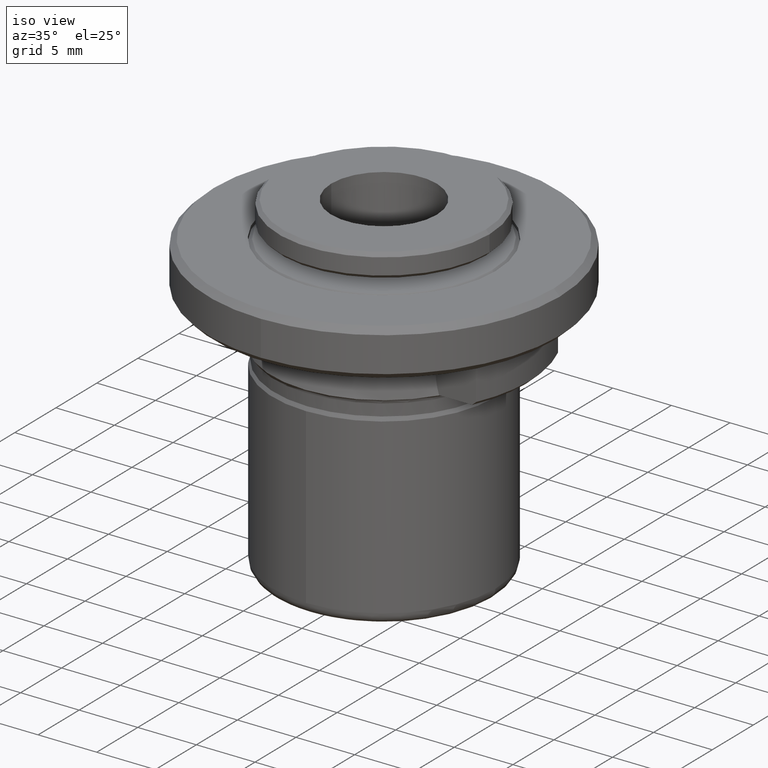
[diagram: clean part render]
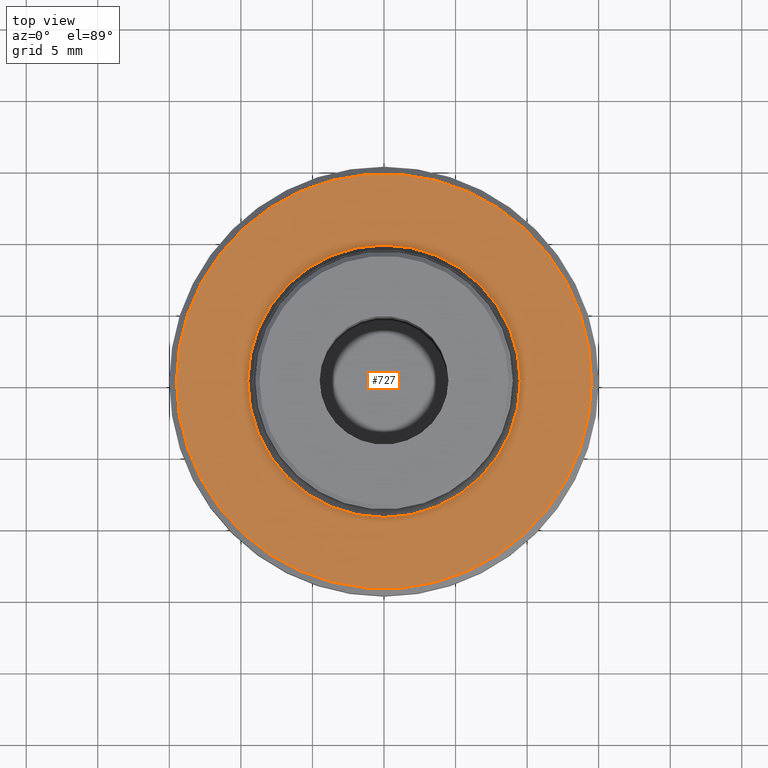
[diagram: tour spotlight — one face highlighted and labeled with its STEP entity id]
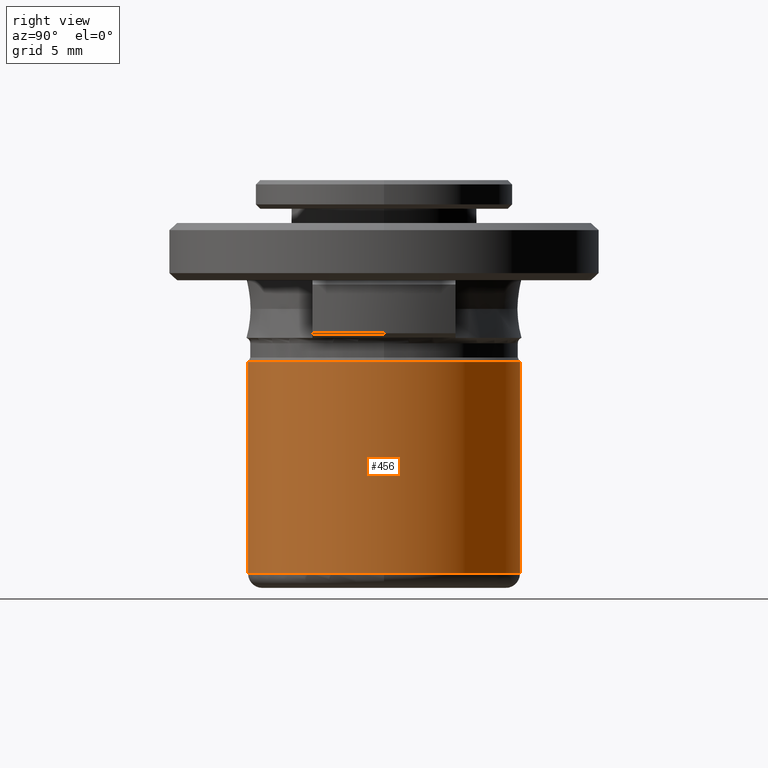
[diagram: tour spotlight — one face highlighted and labeled with its STEP entity id]
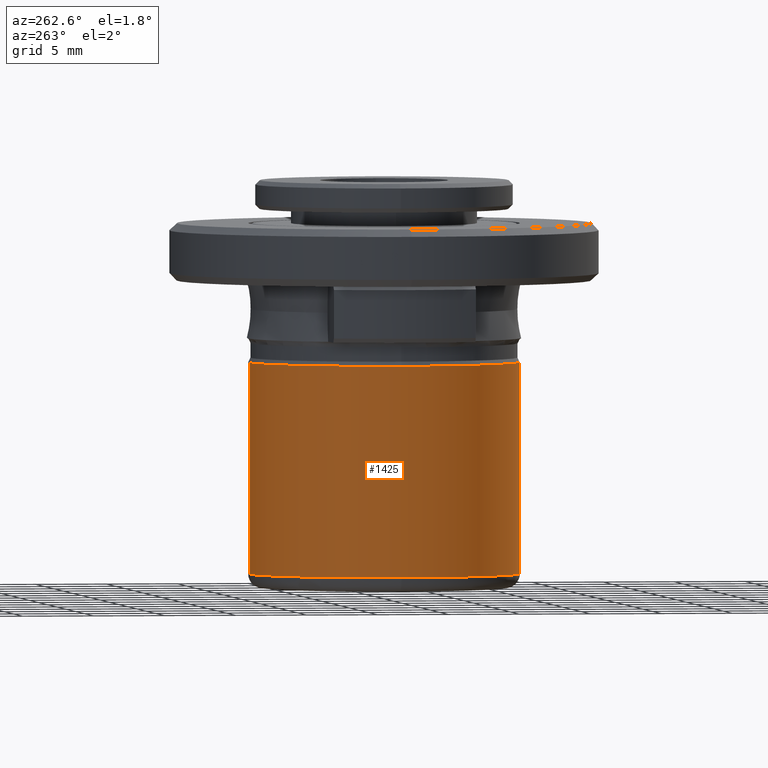
[diagram: tour spotlight — one face highlighted and labeled with its STEP entity id]
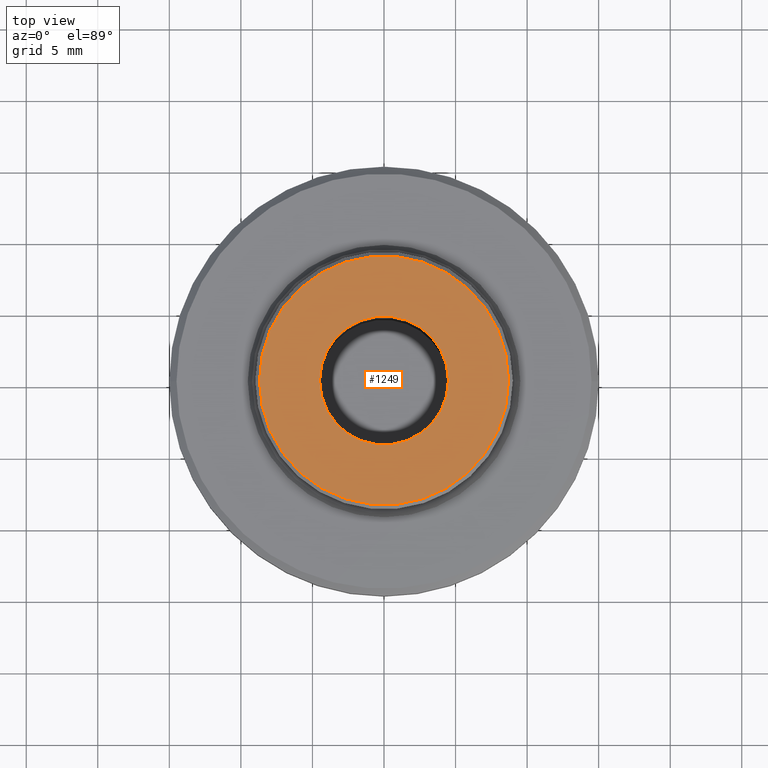
[diagram: tour spotlight — one face highlighted and labeled with its STEP entity id]
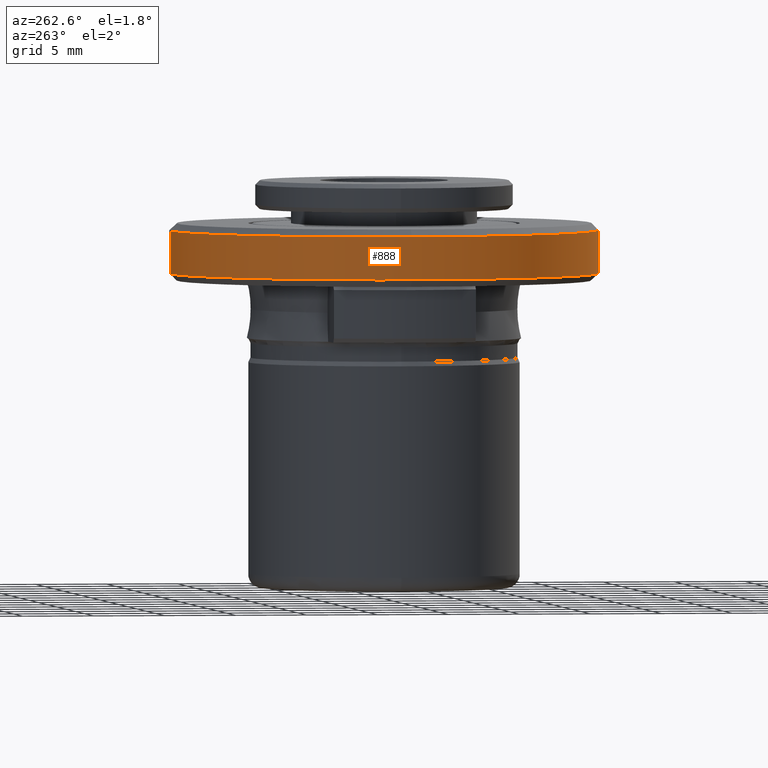
[diagram: tour spotlight — one face highlighted and labeled with its STEP entity id]
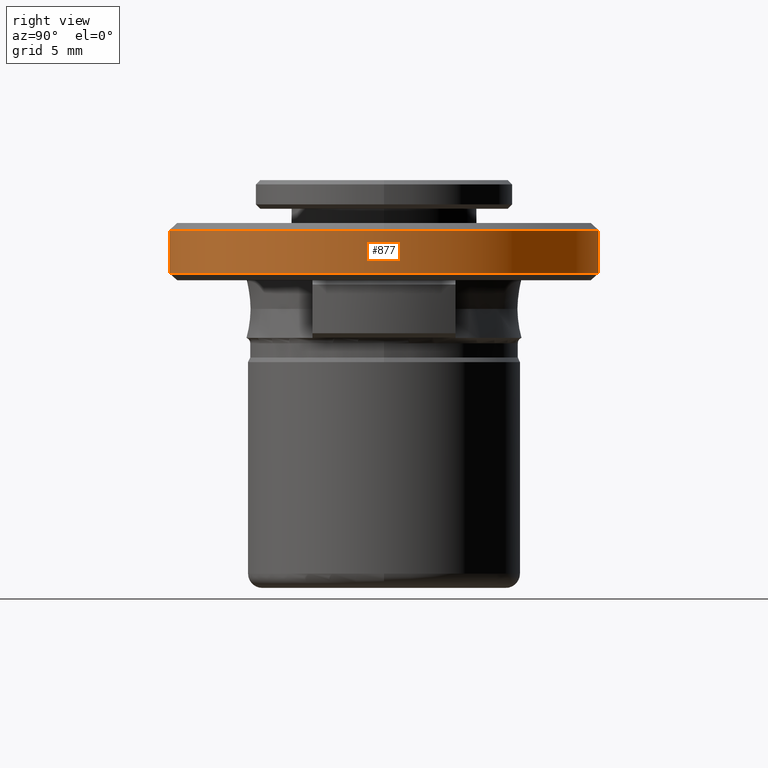
[diagram: tour spotlight — one face highlighted and labeled with its STEP entity id]
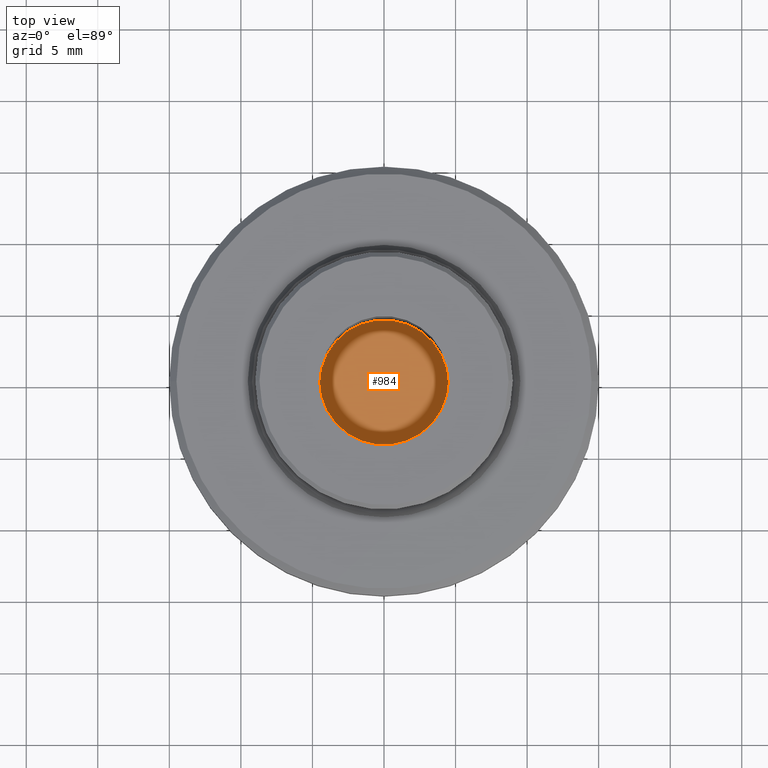
[diagram: tour spotlight — one face highlighted and labeled with its STEP entity id]
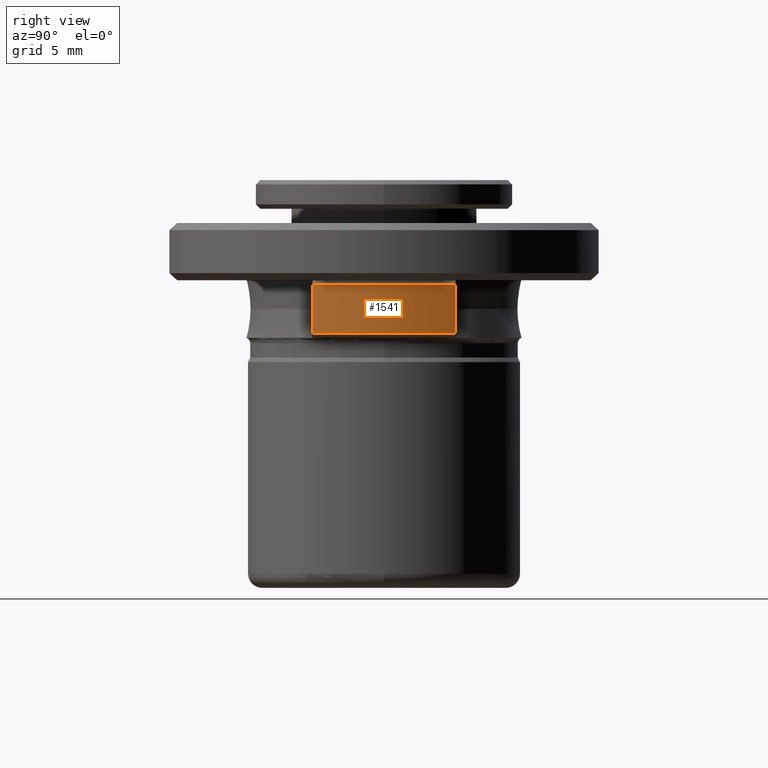
[diagram: tour spotlight — one face highlighted and labeled with its STEP entity id]
A machine part: a face-by-face anatomy tour. The part has 55 B-rep faces; the first image is the clean iso view, then the 8 largest visible faces are spotlighted one at a time (largest first), each with its STEP entity span.

Face 1 — top view, entity #727. In plain terms, the highlighted planar face has unit normal (0, 0, -1).
Definition (entity closure, byte-faithful):
#61 = AXIS2_PLACEMENT_3D ( 'NONE', #1360, #536, #1493 ) ;
#89 = CARTESIAN_POINT ( 'NONE',  ( 0.0000000000000000000, 0.0000000000000000000, 12.75000000000000200 ) ) ;
#98 = CARTESIAN_POINT ( 'NONE',  ( 9.519999999999999600, 1.165863752788280200E-015, 12.75000000000000200 ) ) ;
#160 = ORIENTED_EDGE ( 'NONE', *, *, #204, .F. ) ;
#169 = DIRECTION ( 'NONE',  ( -0.0000000000000000000, -0.0000000000000000000, 1.000000000000000000 ) ) ;
#204 = EDGE_CURVE ( 'NONE', #830, #1688, #1112, .T. ) ;
#227 = DIRECTION ( 'NONE',  ( -1.000000000000000000, 0.0000000000000000000, 0.0000000000000000000 ) ) ;
#254 = CIRCLE ( 'NONE', #429, 9.519999999999999600 ) ;
#276 = EDGE_CURVE ( 'NONE', #1688, #830, #254, .T. ) ;
#346 = CARTESIAN_POINT ( 'NONE',  ( 0.0000000000000000000, 0.0000000000000000000, 12.75000000000003900 ) ) ;
#349 = EDGE_CURVE ( 'NONE', #933, #1480, #1229, .T. ) ;
#361 = CARTESIAN_POINT ( 'NONE',  ( 14.67399999999999900, -14.67399999999999900, 12.75000000000000200 ) ) ;
#429 = AXIS2_PLACEMENT_3D ( 'NONE', #89, #1074, #227 ) ;
#483 = DIRECTION ( 'NONE',  ( -1.000000000000000000, 0.0000000000000000000, 0.0000000000000000000 ) ) ;
#536 = DIRECTION ( 'NONE',  ( -0.0000000000000000000, -0.0000000000000000000, 1.000000000000000000 ) ) ;
#538 = CARTESIAN_POINT ( 'NONE',  ( -14.49999999999996300, 0.0000000000000000000, 12.75000000000003900 ) ) ;
#552 = EDGE_LOOP ( 'NONE', ( #560, #160 ) ) ;
#560 = ORIENTED_EDGE ( 'NONE', *, *, #276, .F. ) ;
#655 = AXIS2_PLACEMENT_3D ( 'NONE', #361, #1595, #798 ) ;
#706 = AXIS2_PLACEMENT_3D ( 'NONE', #1015, #169, #1145 ) ;
#717 = ORIENTED_EDGE ( 'NONE', *, *, #349, .T. ) ;
#720 = CIRCLE ( 'NONE', #706, 14.49999999999996300 ) ;
#727 = ADVANCED_FACE ( 'NONE', ( #1737, #1068 ), #1064, .F. ) ;
#798 = DIRECTION ( 'NONE',  ( -1.000000000000000000, 0.0000000000000000000, 0.0000000000000000000 ) ) ;
#830 = VERTEX_POINT ( 'NONE', #98 ) ;
#881 = CARTESIAN_POINT ( 'NONE',  ( -9.519999999999999600, 0.0000000000000000000, 12.75000000000000200 ) ) ;
#902 = CARTESIAN_POINT ( 'NONE',  ( 14.49999999999996300, 1.806354028742343400E-015, 12.75000000000003900 ) ) ;
#933 = VERTEX_POINT ( 'NONE', #538 ) ;
#1015 = CARTESIAN_POINT ( 'NONE',  ( 0.0000000000000000000, 0.0000000000000000000, 12.75000000000003900 ) ) ;
#1064 = PLANE ( 'NONE',  #655 ) ;
#1068 = FACE_OUTER_BOUND ( 'NONE', #1658, .T. ) ;
#1074 = DIRECTION ( 'NONE',  ( -0.0000000000000000000, -0.0000000000000000000, 1.000000000000000000 ) ) ;
#1088 = AXIS2_PLACEMENT_3D ( 'NONE', #346, #1308, #483 ) ;
#1112 = CIRCLE ( 'NONE', #61, 9.519999999999999600 ) ;
#1145 = DIRECTION ( 'NONE',  ( -1.000000000000000000, 0.0000000000000000000, 0.0000000000000000000 ) ) ;
#1196 = ORIENTED_EDGE ( 'NONE', *, *, #1746, .T. ) ;
#1229 = CIRCLE ( 'NONE', #1088, 14.49999999999996300 ) ;
#1308 = DIRECTION ( 'NONE',  ( -0.0000000000000000000, -0.0000000000000000000, 1.000000000000000000 ) ) ;
#1360 = CARTESIAN_POINT ( 'NONE',  ( 0.0000000000000000000, 0.0000000000000000000, 12.75000000000000200 ) ) ;
#1480 = VERTEX_POINT ( 'NONE', #902 ) ;
#1493 = DIRECTION ( 'NONE',  ( -1.000000000000000000, 0.0000000000000000000, 0.0000000000000000000 ) ) ;
#1595 = DIRECTION ( 'NONE',  ( 0.0000000000000000000, 0.0000000000000000000, -1.000000000000000000 ) ) ;
#1658 = EDGE_LOOP ( 'NONE', ( #717, #1196 ) ) ;
#1688 = VERTEX_POINT ( 'NONE', #881 ) ;
#1737 = FACE_BOUND ( 'NONE', #552, .T. ) ;
#1746 = EDGE_CURVE ( 'NONE', #1480, #933, #720, .T. ) ;

Face 2 — right view, entity #456. In plain terms, the highlighted cylindrical surface (partial cylindrical patch) has radius 9.5 mm, axis along (0, -0, 1).
Definition (entity closure, byte-faithful):
#41 = EDGE_CURVE ( 'NONE', #1419, #101, #262, .T. ) ;
#101 = VERTEX_POINT ( 'NONE', #1254 ) ;
#145 = AXIS2_PLACEMENT_3D ( 'NONE', #832, #1771, #956 ) ;
#183 = EDGE_CURVE ( 'NONE', #1394, #1253, #1434, .T. ) ;
#207 = EDGE_CURVE ( 'NONE', #910, #1419, #805, .T. ) ;
#211 = VECTOR ( 'NONE', #324, 1000.000000000000000 ) ;
#222 = CARTESIAN_POINT ( 'NONE',  ( 0.0000000000000000000, -9.500000000000000000, -6.570177872000000400 ) ) ;
#240 = CARTESIAN_POINT ( 'NONE',  ( 0.0000000000000000000, 0.0000000000000000000, 3.030000000000088200 ) ) ;
#247 = EDGE_CURVE ( 'NONE', #1253, #1065, #348, .T. ) ;
#262 = CIRCLE ( 'NONE', #1453, 9.500000000000000000 ) ;
#265 = EDGE_CURVE ( 'NONE', #910, #1065, #297, .T. ) ;
#280 = EDGE_CURVE ( 'NONE', #101, #1394, #1364, .T. ) ;
#297 = LINE ( 'NONE', #222, #643 ) ;
#324 = DIRECTION ( 'NONE',  ( 0.0000000000000000000, -4.565061778886334800E-017, 1.000000000000000000 ) ) ;
#344 = AXIS2_PLACEMENT_3D ( 'NONE', #1184, #362, #1323 ) ;
#348 = CIRCLE ( 'NONE', #344, 9.500000000000000000 ) ;
#362 = DIRECTION ( 'NONE',  ( 0.0000000000000000000, 0.0000000000000000000, -1.000000000000000000 ) ) ;
#367 = FACE_OUTER_BOUND ( 'NONE', #1661, .T. ) ;
#385 = DIRECTION ( 'NONE',  ( -1.000000000000000000, 0.0000000000000000000, -9.312726028928122700E-015 ) ) ;
#393 = AXIS2_PLACEMENT_3D ( 'NONE', #885, #1023, #1551 ) ;
#456 = ADVANCED_FACE ( 'NONE', ( #367 ), #709, .T. ) ;
#565 = CARTESIAN_POINT ( 'NONE',  ( 1.163414459189985500E-015, 9.500000000000000000, 3.030000000000088200 ) ) ;
#629 = CARTESIAN_POINT ( 'NONE',  ( 0.0000000000000000000, -9.500000000000000000, 3.030000000000088200 ) ) ;
#643 = VECTOR ( 'NONE', #1332, 1000.000000000000000 ) ;
#709 = CYLINDRICAL_SURFACE ( 'NONE', #393, 9.500000000000000000 ) ;
#722 = ORIENTED_EDGE ( 'NONE', *, *, #247, .T. ) ;
#778 = CARTESIAN_POINT ( 'NONE',  ( 0.0000000000000000000, 2.364620801796248300E-016, -11.75000000000000000 ) ) ;
#805 = CIRCLE ( 'NONE', #145, 9.500000000000000000 ) ;
#832 = CARTESIAN_POINT ( 'NONE',  ( 0.0000000000000000000, 2.364620801796248300E-016, -11.75000000000000000 ) ) ;
#885 = CARTESIAN_POINT ( 'NONE',  ( 0.0000000000000000000, 0.0000000000000000000, -6.570177872000000400 ) ) ;
#910 = VERTEX_POINT ( 'NONE', #1623 ) ;
#911 = DIRECTION ( 'NONE',  ( 1.000000000000000000, 0.0000000000000000000, 0.0000000000000000000 ) ) ;
#956 = DIRECTION ( 'NONE',  ( 1.000000000000000000, 0.0000000000000000000, 0.0000000000000000000 ) ) ;
#959 = ORIENTED_EDGE ( 'NONE', *, *, #183, .T. ) ;
#1013 = ORIENTED_EDGE ( 'NONE', *, *, #265, .F. ) ;
#1023 = DIRECTION ( 'NONE',  ( 0.0000000000000000000, -4.565061778886334800E-017, 1.000000000000000000 ) ) ;
#1065 = VERTEX_POINT ( 'NONE', #629 ) ;
#1078 = ORIENTED_EDGE ( 'NONE', *, *, #280, .T. ) ;
#1136 = ORIENTED_EDGE ( 'NONE', *, *, #41, .T. ) ;
#1184 = CARTESIAN_POINT ( 'NONE',  ( 0.0000000000000000000, 0.0000000000000000000, 3.030000000000088200 ) ) ;
#1207 = DIRECTION ( 'NONE',  ( 0.0000000000000000000, 0.0000000000000000000, -1.000000000000000000 ) ) ;
#1253 = VERTEX_POINT ( 'NONE', #1608 ) ;
#1254 = CARTESIAN_POINT ( 'NONE',  ( 1.163414459189985500E-015, 9.500000000000000000, -11.75000000000000000 ) ) ;
#1323 = DIRECTION ( 'NONE',  ( -1.000000000000000000, 0.0000000000000000000, -9.312726028928122700E-015 ) ) ;
#1332 = DIRECTION ( 'NONE',  ( 0.0000000000000000000, -4.565061778886334800E-017, 1.000000000000000000 ) ) ;
#1364 = LINE ( 'NONE', #1474, #211 ) ;
#1394 = VERTEX_POINT ( 'NONE', #565 ) ;
#1419 = VERTEX_POINT ( 'NONE', #1556 ) ;
#1434 = CIRCLE ( 'NONE', #1576, 9.500000000000000000 ) ;
#1453 = AXIS2_PLACEMENT_3D ( 'NONE', #778, #1714, #911 ) ;
#1474 = CARTESIAN_POINT ( 'NONE',  ( 1.163414459189985500E-015, 9.500000000000000000, -6.570177872000000400 ) ) ;
#1536 = ORIENTED_EDGE ( 'NONE', *, *, #207, .T. ) ;
#1551 = DIRECTION ( 'NONE',  ( 0.0000000000000000000, -1.000000000000000000, 0.0000000000000000000 ) ) ;
#1556 = CARTESIAN_POINT ( 'NONE',  ( 9.500000000000001800, 2.364620801796248300E-016, -11.75000000000000000 ) ) ;
#1576 = AXIS2_PLACEMENT_3D ( 'NONE', #240, #1207, #385 ) ;
#1608 = CARTESIAN_POINT ( 'NONE',  ( 9.499999999999957400, 1.163414459189980600E-015, 3.030000000000088200 ) ) ;
#1623 = CARTESIAN_POINT ( 'NONE',  ( 0.0000000000000000000, -9.500000000000000000, -11.75000000000000000 ) ) ;
#1661 = EDGE_LOOP ( 'NONE', ( #1536, #1136, #1078, #959, #722, #1013 ) ) ;
#1714 = DIRECTION ( 'NONE',  ( 0.0000000000000000000, 0.0000000000000000000, 1.000000000000000000 ) ) ;
#1771 = DIRECTION ( 'NONE',  ( 0.0000000000000000000, 0.0000000000000000000, 1.000000000000000000 ) ) ;

Face 3 — auxiliary view, entity #1425. In plain terms, the highlighted cylindrical surface (partial cylindrical patch) has radius 9.5 mm, axis along (0, -0, 1).
Definition (entity closure, byte-faithful):
#25 = ORIENTED_EDGE ( 'NONE', *, *, #513, .T. ) ;
#26 = CARTESIAN_POINT ( 'NONE',  ( 0.0000000000000000000, 0.0000000000000000000, 3.030000000000088200 ) ) ;
#101 = VERTEX_POINT ( 'NONE', #1254 ) ;
#165 = DIRECTION ( 'NONE',  ( -1.000000000000000000, 0.0000000000000000000, -9.312726028928122700E-015 ) ) ;
#211 = VECTOR ( 'NONE', #324, 1000.000000000000000 ) ;
#222 = CARTESIAN_POINT ( 'NONE',  ( 0.0000000000000000000, -9.500000000000000000, -6.570177872000000400 ) ) ;
#264 = AXIS2_PLACEMENT_3D ( 'NONE', #1322, #501, #1464 ) ;
#265 = EDGE_CURVE ( 'NONE', #910, #1065, #297, .T. ) ;
#280 = EDGE_CURVE ( 'NONE', #101, #1394, #1364, .T. ) ;
#283 = ORIENTED_EDGE ( 'NONE', *, *, #718, .T. ) ;
#297 = LINE ( 'NONE', #222, #643 ) ;
#302 = CARTESIAN_POINT ( 'NONE',  ( 0.0000000000000000000, 2.364620801796248300E-016, -11.75000000000000000 ) ) ;
#314 = CIRCLE ( 'NONE', #264, 9.500000000000000000 ) ;
#324 = DIRECTION ( 'NONE',  ( 0.0000000000000000000, -4.565061778886334800E-017, 1.000000000000000000 ) ) ;
#353 = AXIS2_PLACEMENT_3D ( 'NONE', #26, #1010, #165 ) ;
#422 = ORIENTED_EDGE ( 'NONE', *, *, #1408, .T. ) ;
#443 = DIRECTION ( 'NONE',  ( 1.000000000000000000, 0.0000000000000000000, 0.0000000000000000000 ) ) ;
#493 = AXIS2_PLACEMENT_3D ( 'NONE', #302, #1267, #443 ) ;
#501 = DIRECTION ( 'NONE',  ( 0.0000000000000000000, 0.0000000000000000000, -1.000000000000000000 ) ) ;
#513 = EDGE_CURVE ( 'NONE', #1186, #910, #662, .T. ) ;
#565 = CARTESIAN_POINT ( 'NONE',  ( 1.163414459189985500E-015, 9.500000000000000000, 3.030000000000088200 ) ) ;
#613 = CARTESIAN_POINT ( 'NONE',  ( 0.0000000000000000000, 0.0000000000000000000, -6.570177872000000400 ) ) ;
#629 = CARTESIAN_POINT ( 'NONE',  ( 0.0000000000000000000, -9.500000000000000000, 3.030000000000088200 ) ) ;
#643 = VECTOR ( 'NONE', #1332, 1000.000000000000000 ) ;
#662 = CIRCLE ( 'NONE', #493, 9.500000000000000000 ) ;
#700 = FACE_OUTER_BOUND ( 'NONE', #854, .T. ) ;
#718 = EDGE_CURVE ( 'NONE', #1065, #1574, #314, .T. ) ;
#755 = DIRECTION ( 'NONE',  ( 0.0000000000000000000, -4.565061778886334800E-017, 1.000000000000000000 ) ) ;
#850 = CARTESIAN_POINT ( 'NONE',  ( 0.0000000000000000000, 2.364620801796248300E-016, -11.75000000000000000 ) ) ;
#854 = EDGE_LOOP ( 'NONE', ( #1167, #1173, #25, #1415, #283, #422 ) ) ;
#893 = DIRECTION ( 'NONE',  ( 0.0000000000000000000, -1.000000000000000000, 0.0000000000000000000 ) ) ;
#910 = VERTEX_POINT ( 'NONE', #1623 ) ;
#931 = CYLINDRICAL_SURFACE ( 'NONE', #1007, 9.500000000000000000 ) ;
#978 = DIRECTION ( 'NONE',  ( 1.000000000000000000, 0.0000000000000000000, 0.0000000000000000000 ) ) ;
#1007 = AXIS2_PLACEMENT_3D ( 'NONE', #613, #755, #893 ) ;
#1010 = DIRECTION ( 'NONE',  ( 0.0000000000000000000, 0.0000000000000000000, -1.000000000000000000 ) ) ;
#1059 = CARTESIAN_POINT ( 'NONE',  ( -9.500000000000001800, 1.399876539369610000E-015, -11.75000000000000000 ) ) ;
#1065 = VERTEX_POINT ( 'NONE', #629 ) ;
#1108 = CARTESIAN_POINT ( 'NONE',  ( -9.499999999999957400, 0.0000000000000000000, 3.030000000000088200 ) ) ;
#1159 = CIRCLE ( 'NONE', #1271, 9.500000000000000000 ) ;
#1167 = ORIENTED_EDGE ( 'NONE', *, *, #280, .F. ) ;
#1173 = ORIENTED_EDGE ( 'NONE', *, *, #1609, .T. ) ;
#1186 = VERTEX_POINT ( 'NONE', #1059 ) ;
#1254 = CARTESIAN_POINT ( 'NONE',  ( 1.163414459189985500E-015, 9.500000000000000000, -11.75000000000000000 ) ) ;
#1267 = DIRECTION ( 'NONE',  ( 0.0000000000000000000, 0.0000000000000000000, 1.000000000000000000 ) ) ;
#1271 = AXIS2_PLACEMENT_3D ( 'NONE', #850, #1786, #978 ) ;
#1322 = CARTESIAN_POINT ( 'NONE',  ( 0.0000000000000000000, 0.0000000000000000000, 3.030000000000088200 ) ) ;
#1328 = CIRCLE ( 'NONE', #353, 9.500000000000000000 ) ;
#1332 = DIRECTION ( 'NONE',  ( 0.0000000000000000000, -4.565061778886334800E-017, 1.000000000000000000 ) ) ;
#1364 = LINE ( 'NONE', #1474, #211 ) ;
#1394 = VERTEX_POINT ( 'NONE', #565 ) ;
#1408 = EDGE_CURVE ( 'NONE', #1574, #1394, #1328, .T. ) ;
#1415 = ORIENTED_EDGE ( 'NONE', *, *, #265, .T. ) ;
#1425 = ADVANCED_FACE ( 'NONE', ( #700 ), #931, .T. ) ;
#1464 = DIRECTION ( 'NONE',  ( -1.000000000000000000, 0.0000000000000000000, -9.312726028928122700E-015 ) ) ;
#1474 = CARTESIAN_POINT ( 'NONE',  ( 1.163414459189985500E-015, 9.500000000000000000, -6.570177872000000400 ) ) ;
#1574 = VERTEX_POINT ( 'NONE', #1108 ) ;
#1609 = EDGE_CURVE ( 'NONE', #101, #1186, #1159, .T. ) ;
#1623 = CARTESIAN_POINT ( 'NONE',  ( 0.0000000000000000000, -9.500000000000000000, -11.75000000000000000 ) ) ;
#1786 = DIRECTION ( 'NONE',  ( 0.0000000000000000000, 0.0000000000000000000, 1.000000000000000000 ) ) ;

Face 4 — top view, entity #1249. In plain terms, the highlighted planar face has unit normal (0, 0, -1).
Definition (entity closure, byte-faithful):
#8 = EDGE_CURVE ( 'NONE', #1154, #1717, #356, .T. ) ;
#79 = CARTESIAN_POINT ( 'NONE',  ( 8.700000000000002800, 1.083812417245407700E-015, 15.75000000000000000 ) ) ;
#99 = DIRECTION ( 'NONE',  ( 0.0000000000000000000, 0.0000000000000000000, -1.000000000000000000 ) ) ;
#116 = CIRCLE ( 'NONE', #482, 4.499999999999998200 ) ;
#148 = EDGE_CURVE ( 'NONE', #1393, #721, #1191, .T. ) ;
#184 = CARTESIAN_POINT ( 'NONE',  ( 0.0000000000000000000, 0.0000000000000000000, 15.75000000000000000 ) ) ;
#311 = ORIENTED_EDGE ( 'NONE', *, *, #148, .T. ) ;
#329 = DIRECTION ( 'NONE',  ( -1.000000000000000000, 0.0000000000000000000, 0.0000000000000000000 ) ) ;
#356 = CIRCLE ( 'NONE', #574, 8.700000000000002800 ) ;
#369 = CARTESIAN_POINT ( 'NONE',  ( 0.0000000000000000000, 0.0000000000000000000, 15.75000000000000000 ) ) ;
#383 = AXIS2_PLACEMENT_3D ( 'NONE', #369, #1336, #512 ) ;
#440 = FACE_OUTER_BOUND ( 'NONE', #477, .T. ) ;
#477 = EDGE_LOOP ( 'NONE', ( #1304, #789 ) ) ;
#482 = AXIS2_PLACEMENT_3D ( 'NONE', #809, #1745, #937 ) ;
#512 = DIRECTION ( 'NONE',  ( -1.000000000000000000, 0.0000000000000000000, 0.0000000000000000000 ) ) ;
#574 = AXIS2_PLACEMENT_3D ( 'NONE', #184, #1156, #329 ) ;
#580 = EDGE_LOOP ( 'NONE', ( #311, #1382 ) ) ;
#607 = CARTESIAN_POINT ( 'NONE',  ( -8.700000000000002800, 0.0000000000000000000, 15.75000000000000000 ) ) ;
#664 = PLANE ( 'NONE',  #779 ) ;
#684 = DIRECTION ( 'NONE',  ( -0.0000000000000000000, -0.0000000000000000000, -1.000000000000000000 ) ) ;
#721 = VERTEX_POINT ( 'NONE', #1457 ) ;
#779 = AXIS2_PLACEMENT_3D ( 'NONE', #803, #99, #1076 ) ;
#789 = ORIENTED_EDGE ( 'NONE', *, *, #8, .T. ) ;
#803 = CARTESIAN_POINT ( 'NONE',  ( 7.286400000000000400, -7.286400000000000400, 15.75000000000000000 ) ) ;
#809 = CARTESIAN_POINT ( 'NONE',  ( 0.0000000000000000000, 0.0000000000000000000, 15.75000000000000000 ) ) ;
#937 = DIRECTION ( 'NONE',  ( -1.000000000000000000, 0.0000000000000000000, 0.0000000000000000000 ) ) ;
#940 = AXIS2_PLACEMENT_3D ( 'NONE', #1489, #684, #1624 ) ;
#1076 = DIRECTION ( 'NONE',  ( -1.000000000000000000, 0.0000000000000000000, 0.0000000000000000000 ) ) ;
#1154 = VERTEX_POINT ( 'NONE', #79 ) ;
#1156 = DIRECTION ( 'NONE',  ( -0.0000000000000000000, -0.0000000000000000000, 1.000000000000000000 ) ) ;
#1178 = FACE_BOUND ( 'NONE', #580, .T. ) ;
#1191 = CIRCLE ( 'NONE', #940, 4.499999999999998200 ) ;
#1238 = EDGE_CURVE ( 'NONE', #1717, #1154, #1589, .T. ) ;
#1247 = EDGE_CURVE ( 'NONE', #721, #1393, #116, .T. ) ;
#1249 = ADVANCED_FACE ( 'NONE', ( #1178, #440 ), #664, .F. ) ;
#1304 = ORIENTED_EDGE ( 'NONE', *, *, #1238, .T. ) ;
#1336 = DIRECTION ( 'NONE',  ( -0.0000000000000000000, -0.0000000000000000000, 1.000000000000000000 ) ) ;
#1382 = ORIENTED_EDGE ( 'NONE', *, *, #1247, .T. ) ;
#1385 = CARTESIAN_POINT ( 'NONE',  ( -4.499999999999998200, 0.0000000000000000000, 15.75000000000000000 ) ) ;
#1393 = VERTEX_POINT ( 'NONE', #1385 ) ;
#1457 = CARTESIAN_POINT ( 'NONE',  ( 4.499999999999998200, 5.510910596163086600E-016, 15.75000000000000000 ) ) ;
#1489 = CARTESIAN_POINT ( 'NONE',  ( 0.0000000000000000000, 0.0000000000000000000, 15.75000000000000000 ) ) ;
#1589 = CIRCLE ( 'NONE', #383, 8.700000000000002800 ) ;
#1624 = DIRECTION ( 'NONE',  ( -1.000000000000000000, 0.0000000000000000000, 0.0000000000000000000 ) ) ;
#1717 = VERTEX_POINT ( 'NONE', #607 ) ;
#1745 = DIRECTION ( 'NONE',  ( -0.0000000000000000000, -0.0000000000000000000, -1.000000000000000000 ) ) ;

Face 5 — auxiliary view, entity #888. In plain terms, the highlighted cylindrical surface (partial cylindrical patch) has radius 15 mm, axis along (0, -0, -1).
Definition (entity closure, byte-faithful):
#2 = CARTESIAN_POINT ( 'NONE',  ( -15.00000000000000000, 0.0000000000000000000, 12.25000000000000000 ) ) ;
#4 = LINE ( 'NONE', #168, #288 ) ;
#36 = CARTESIAN_POINT ( 'NONE',  ( 1.836970198721029600E-015, -15.00000000000000000, 12.25000000000000000 ) ) ;
#42 = AXIS2_PLACEMENT_3D ( 'NONE', #1763, #107, #826 ) ;
#44 = DIRECTION ( 'NONE',  ( -0.0000000000000000000, -0.0000000000000000000, 1.000000000000000000 ) ) ;
#47 = VERTEX_POINT ( 'NONE', #2 ) ;
#91 = VERTEX_POINT ( 'NONE', #1280 ) ;
#100 = CYLINDRICAL_SURFACE ( 'NONE', #42, 15.00000000000000000 ) ;
#107 = DIRECTION ( 'NONE',  ( 0.0000000000000000000, -5.782411586589358600E-017, -1.000000000000000000 ) ) ;
#113 = VERTEX_POINT ( 'NONE', #36 ) ;
#162 = CIRCLE ( 'NONE', #1358, 15.00000000000000000 ) ;
#168 = CARTESIAN_POINT ( 'NONE',  ( 0.0000000000000000000, 15.00000000000000000, 12.24999999999999800 ) ) ;
#178 = VECTOR ( 'NONE', #618, 1000.000000000000000 ) ;
#194 = ORIENTED_EDGE ( 'NONE', *, *, #1784, .F. ) ;
#197 = CARTESIAN_POINT ( 'NONE',  ( 0.0000000000000000000, 0.0000000000000000000, 9.249999999999980500 ) ) ;
#242 = CIRCLE ( 'NONE', #891, 15.00000000000000000 ) ;
#269 = ORIENTED_EDGE ( 'NONE', *, *, #1305, .T. ) ;
#288 = VECTOR ( 'NONE', #455, 1000.000000000000000 ) ;
#345 = DIRECTION ( 'NONE',  ( 1.000000000000000000, 0.0000000000000000000, 1.272130549049658600E-015 ) ) ;
#414 = EDGE_CURVE ( 'NONE', #949, #47, #162, .T. ) ;
#455 = DIRECTION ( 'NONE',  ( 0.0000000000000000000, -5.782411586589358600E-017, -1.000000000000000000 ) ) ;
#459 = CARTESIAN_POINT ( 'NONE',  ( 1.836970198721029600E-015, -15.00000000000000000, 9.249999999999980500 ) ) ;
#463 = DIRECTION ( 'NONE',  ( -0.0000000000000000000, -0.0000000000000000000, 1.000000000000000000 ) ) ;
#618 = DIRECTION ( 'NONE',  ( 0.0000000000000000000, -5.782411586589358600E-017, -1.000000000000000000 ) ) ;
#759 = CARTESIAN_POINT ( 'NONE',  ( 1.836970198721029600E-015, -15.00000000000000000, 12.25000000000000200 ) ) ;
#770 = ORIENTED_EDGE ( 'NONE', *, *, #414, .F. ) ;
#823 = CARTESIAN_POINT ( 'NONE',  ( 0.0000000000000000000, 0.0000000000000000000, 9.249999999999980500 ) ) ;
#826 = DIRECTION ( 'NONE',  ( 0.0000000000000000000, 1.000000000000000000, -1.156482317317871500E-016 ) ) ;
#865 = AXIS2_PLACEMENT_3D ( 'NONE', #823, #1759, #948 ) ;
#888 = ADVANCED_FACE ( 'NONE', ( #1245 ), #100, .T. ) ;
#891 = AXIS2_PLACEMENT_3D ( 'NONE', #898, #44, #1032 ) ;
#898 = CARTESIAN_POINT ( 'NONE',  ( 0.0000000000000000000, 0.0000000000000000000, 12.25000000000000000 ) ) ;
#948 = DIRECTION ( 'NONE',  ( 1.000000000000000000, 0.0000000000000000000, 1.272130549049658600E-015 ) ) ;
#949 = VERTEX_POINT ( 'NONE', #1631 ) ;
#1032 = DIRECTION ( 'NONE',  ( -1.000000000000000000, 0.0000000000000000000, 0.0000000000000000000 ) ) ;
#1079 = AXIS2_PLACEMENT_3D ( 'NONE', #197, #1168, #345 ) ;
#1080 = EDGE_CURVE ( 'NONE', #91, #1296, #1715, .T. ) ;
#1168 = DIRECTION ( 'NONE',  ( 0.0000000000000000000, 0.0000000000000000000, 1.000000000000000000 ) ) ;
#1245 = FACE_OUTER_BOUND ( 'NONE', #1730, .T. ) ;
#1280 = CARTESIAN_POINT ( 'NONE',  ( 0.0000000000000000000, 15.00000000000000000, 9.249999999999980500 ) ) ;
#1284 = LINE ( 'NONE', #759, #178 ) ;
#1292 = CARTESIAN_POINT ( 'NONE',  ( 0.0000000000000000000, 0.0000000000000000000, 12.25000000000000000 ) ) ;
#1296 = VERTEX_POINT ( 'NONE', #1344 ) ;
#1305 = EDGE_CURVE ( 'NONE', #1296, #1777, #1461, .T. ) ;
#1344 = CARTESIAN_POINT ( 'NONE',  ( -14.99999999999998000, 1.836970198721027200E-015, 9.249999999999980500 ) ) ;
#1358 = AXIS2_PLACEMENT_3D ( 'NONE', #1292, #463, #1433 ) ;
#1433 = DIRECTION ( 'NONE',  ( -1.000000000000000000, 0.0000000000000000000, 0.0000000000000000000 ) ) ;
#1461 = CIRCLE ( 'NONE', #865, 15.00000000000000000 ) ;
#1505 = ORIENTED_EDGE ( 'NONE', *, *, #1522, .F. ) ;
#1522 = EDGE_CURVE ( 'NONE', #113, #1777, #1284, .T. ) ;
#1631 = CARTESIAN_POINT ( 'NONE',  ( 0.0000000000000000000, 15.00000000000000000, 12.25000000000000000 ) ) ;
#1715 = CIRCLE ( 'NONE', #1079, 15.00000000000000000 ) ;
#1730 = EDGE_LOOP ( 'NONE', ( #1505, #194, #770, #1761, #1752, #269 ) ) ;
#1752 = ORIENTED_EDGE ( 'NONE', *, *, #1080, .T. ) ;
#1759 = DIRECTION ( 'NONE',  ( 0.0000000000000000000, 0.0000000000000000000, 1.000000000000000000 ) ) ;
#1760 = EDGE_CURVE ( 'NONE', #949, #91, #4, .T. ) ;
#1761 = ORIENTED_EDGE ( 'NONE', *, *, #1760, .T. ) ;
#1763 = CARTESIAN_POINT ( 'NONE',  ( 0.0000000000000000000, 0.0000000000000000000, 12.25000000000000000 ) ) ;
#1777 = VERTEX_POINT ( 'NONE', #459 ) ;
#1784 = EDGE_CURVE ( 'NONE', #47, #113, #242, .T. ) ;

Face 6 — right view, entity #877. In plain terms, the highlighted cylindrical surface (partial cylindrical patch) has radius 15 mm, axis along (0, -0, -1).
Definition (entity closure, byte-faithful):
#4 = LINE ( 'NONE', #168, #288 ) ;
#31 = AXIS2_PLACEMENT_3D ( 'NONE', #444, #1413, #596 ) ;
#36 = CARTESIAN_POINT ( 'NONE',  ( 1.836970198721029600E-015, -15.00000000000000000, 12.25000000000000000 ) ) ;
#91 = VERTEX_POINT ( 'NONE', #1280 ) ;
#113 = VERTEX_POINT ( 'NONE', #36 ) ;
#150 = VERTEX_POINT ( 'NONE', #531 ) ;
#155 = EDGE_CURVE ( 'NONE', #150, #949, #413, .T. ) ;
#168 = CARTESIAN_POINT ( 'NONE',  ( 0.0000000000000000000, 15.00000000000000000, 12.24999999999999800 ) ) ;
#178 = VECTOR ( 'NONE', #618, 1000.000000000000000 ) ;
#182 = FACE_OUTER_BOUND ( 'NONE', #1095, .T. ) ;
#203 = DIRECTION ( 'NONE',  ( 0.0000000000000000000, 0.0000000000000000000, 1.000000000000000000 ) ) ;
#288 = VECTOR ( 'NONE', #455, 1000.000000000000000 ) ;
#340 = CIRCLE ( 'NONE', #31, 15.00000000000000000 ) ;
#343 = CIRCLE ( 'NONE', #1251, 15.00000000000000000 ) ;
#411 = DIRECTION ( 'NONE',  ( 0.0000000000000000000, 0.0000000000000000000, 1.000000000000000000 ) ) ;
#413 = CIRCLE ( 'NONE', #857, 15.00000000000000000 ) ;
#444 = CARTESIAN_POINT ( 'NONE',  ( 0.0000000000000000000, 0.0000000000000000000, 12.25000000000000000 ) ) ;
#455 = DIRECTION ( 'NONE',  ( 0.0000000000000000000, -5.782411586589358600E-017, -1.000000000000000000 ) ) ;
#459 = CARTESIAN_POINT ( 'NONE',  ( 1.836970198721029600E-015, -15.00000000000000000, 9.249999999999980500 ) ) ;
#514 = CYLINDRICAL_SURFACE ( 'NONE', #1649, 15.00000000000000000 ) ;
#526 = CARTESIAN_POINT ( 'NONE',  ( 0.0000000000000000000, 0.0000000000000000000, 12.25000000000000000 ) ) ;
#531 = CARTESIAN_POINT ( 'NONE',  ( 15.00000000000000000, 1.836970198721029600E-015, 12.25000000000000000 ) ) ;
#596 = DIRECTION ( 'NONE',  ( -1.000000000000000000, 0.0000000000000000000, 0.0000000000000000000 ) ) ;
#618 = DIRECTION ( 'NONE',  ( 0.0000000000000000000, -5.782411586589358600E-017, -1.000000000000000000 ) ) ;
#683 = DIRECTION ( 'NONE',  ( 0.0000000000000000000, -5.782411586589358600E-017, -1.000000000000000000 ) ) ;
#695 = DIRECTION ( 'NONE',  ( -0.0000000000000000000, -0.0000000000000000000, 1.000000000000000000 ) ) ;
#759 = CARTESIAN_POINT ( 'NONE',  ( 1.836970198721029600E-015, -15.00000000000000000, 12.25000000000000200 ) ) ;
#835 = ORIENTED_EDGE ( 'NONE', *, *, #1760, .F. ) ;
#857 = AXIS2_PLACEMENT_3D ( 'NONE', #1503, #695, #1637 ) ;
#873 = ORIENTED_EDGE ( 'NONE', *, *, #1114, .T. ) ;
#877 = ADVANCED_FACE ( 'NONE', ( #182 ), #514, .T. ) ;
#949 = VERTEX_POINT ( 'NONE', #1631 ) ;
#1054 = CARTESIAN_POINT ( 'NONE',  ( 0.0000000000000000000, 0.0000000000000000000, 9.249999999999980500 ) ) ;
#1066 = CIRCLE ( 'NONE', #1491, 15.00000000000000000 ) ;
#1095 = EDGE_LOOP ( 'NONE', ( #1285, #1246, #1257, #873, #835, #1113 ) ) ;
#1113 = ORIENTED_EDGE ( 'NONE', *, *, #155, .F. ) ;
#1114 = EDGE_CURVE ( 'NONE', #1412, #91, #343, .T. ) ;
#1171 = DIRECTION ( 'NONE',  ( 1.000000000000000000, 0.0000000000000000000, 1.272130549049658600E-015 ) ) ;
#1239 = CARTESIAN_POINT ( 'NONE',  ( 0.0000000000000000000, 0.0000000000000000000, 9.249999999999980500 ) ) ;
#1246 = ORIENTED_EDGE ( 'NONE', *, *, #1522, .T. ) ;
#1251 = AXIS2_PLACEMENT_3D ( 'NONE', #1054, #203, #1171 ) ;
#1257 = ORIENTED_EDGE ( 'NONE', *, *, #1346, .T. ) ;
#1280 = CARTESIAN_POINT ( 'NONE',  ( 0.0000000000000000000, 15.00000000000000000, 9.249999999999980500 ) ) ;
#1284 = LINE ( 'NONE', #759, #178 ) ;
#1285 = ORIENTED_EDGE ( 'NONE', *, *, #1665, .F. ) ;
#1346 = EDGE_CURVE ( 'NONE', #1777, #1412, #1066, .T. ) ;
#1356 = DIRECTION ( 'NONE',  ( 0.0000000000000000000, 1.000000000000000000, -1.156482317317871500E-016 ) ) ;
#1381 = DIRECTION ( 'NONE',  ( 1.000000000000000000, 0.0000000000000000000, 1.272130549049658600E-015 ) ) ;
#1412 = VERTEX_POINT ( 'NONE', #1677 ) ;
#1413 = DIRECTION ( 'NONE',  ( -0.0000000000000000000, -0.0000000000000000000, 1.000000000000000000 ) ) ;
#1491 = AXIS2_PLACEMENT_3D ( 'NONE', #1239, #411, #1381 ) ;
#1503 = CARTESIAN_POINT ( 'NONE',  ( 0.0000000000000000000, 0.0000000000000000000, 12.25000000000000000 ) ) ;
#1522 = EDGE_CURVE ( 'NONE', #113, #1777, #1284, .T. ) ;
#1631 = CARTESIAN_POINT ( 'NONE',  ( 0.0000000000000000000, 15.00000000000000000, 12.25000000000000000 ) ) ;
#1637 = DIRECTION ( 'NONE',  ( -1.000000000000000000, 0.0000000000000000000, 0.0000000000000000000 ) ) ;
#1649 = AXIS2_PLACEMENT_3D ( 'NONE', #526, #683, #1356 ) ;
#1665 = EDGE_CURVE ( 'NONE', #113, #150, #340, .T. ) ;
#1677 = CARTESIAN_POINT ( 'NONE',  ( 14.99999999999998000, 0.0000000000000000000, 9.249999999999980500 ) ) ;
#1760 = EDGE_CURVE ( 'NONE', #949, #91, #4, .T. ) ;
#1777 = VERTEX_POINT ( 'NONE', #459 ) ;

Face 7 — top view, entity #984. In plain terms, the highlighted planar face has unit normal (-0, 0, -1).
Definition (entity closure, byte-faithful):
#95 = CIRCLE ( 'NONE', #1639, 4.499999999999998200 ) ;
#108 = EDGE_LOOP ( 'NONE', ( #1192, #1001 ) ) ;
#121 = CARTESIAN_POINT ( 'NONE',  ( 0.0000000000000000000, 4.499999999999998200, 0.7500000000000006700 ) ) ;
#292 = AXIS2_PLACEMENT_3D ( 'NONE', #1331, #505, #1469 ) ;
#330 = AXIS2_PLACEMENT_3D ( 'NONE', #121, #1507, #702 ) ;
#382 = CARTESIAN_POINT ( 'NONE',  ( 4.499999999999998200, 5.510910596163086600E-016, 0.7500000000000006700 ) ) ;
#505 = DIRECTION ( 'NONE',  ( -0.0000000000000000000, -0.0000000000000000000, -1.000000000000000000 ) ) ;
#551 = PLANE ( 'NONE',  #330 ) ;
#584 = CARTESIAN_POINT ( 'NONE',  ( 0.0000000000000000000, 0.0000000000000000000, 0.7500000000000006700 ) ) ;
#702 = DIRECTION ( 'NONE',  ( -1.000000000000000000, 0.0000000000000000000, 0.0000000000000000000 ) ) ;
#732 = DIRECTION ( 'NONE',  ( -1.000000000000000000, 0.0000000000000000000, 0.0000000000000000000 ) ) ;
#984 = ADVANCED_FACE ( 'NONE', ( #1163 ), #551, .F. ) ;
#1001 = ORIENTED_EDGE ( 'NONE', *, *, #1201, .F. ) ;
#1163 = FACE_OUTER_BOUND ( 'NONE', #108, .T. ) ;
#1192 = ORIENTED_EDGE ( 'NONE', *, *, #1617, .F. ) ;
#1201 = EDGE_CURVE ( 'NONE', #1318, #1300, #1262, .T. ) ;
#1205 = CARTESIAN_POINT ( 'NONE',  ( -4.499999999999998200, 0.0000000000000000000, 0.7500000000000006700 ) ) ;
#1262 = CIRCLE ( 'NONE', #292, 4.499999999999998200 ) ;
#1300 = VERTEX_POINT ( 'NONE', #1205 ) ;
#1318 = VERTEX_POINT ( 'NONE', #382 ) ;
#1331 = CARTESIAN_POINT ( 'NONE',  ( 0.0000000000000000000, 0.0000000000000000000, 0.7500000000000006700 ) ) ;
#1469 = DIRECTION ( 'NONE',  ( -1.000000000000000000, 0.0000000000000000000, 0.0000000000000000000 ) ) ;
#1507 = DIRECTION ( 'NONE',  ( -0.0000000000000000000, 0.0000000000000000000, -1.000000000000000000 ) ) ;
#1530 = DIRECTION ( 'NONE',  ( -0.0000000000000000000, -0.0000000000000000000, -1.000000000000000000 ) ) ;
#1617 = EDGE_CURVE ( 'NONE', #1300, #1318, #95, .T. ) ;
#1639 = AXIS2_PLACEMENT_3D ( 'NONE', #584, #1530, #732 ) ;

Face 8 — right view, entity #1541. In plain terms, the highlighted cylindrical surface (partial cylindrical patch) has radius 12.4 mm, axis along (0, 0, 1).
Definition (entity closure, byte-faithful):
#20 = CARTESIAN_POINT ( 'NONE',  ( 0.0000000000000000000, 0.0000000000000000000, 5.049999999999998900 ) ) ;
#82 = AXIS2_PLACEMENT_3D ( 'NONE', #1180, #355, #1319 ) ;
#103 = CIRCLE ( 'NONE', #82, 12.40000000000000200 ) ;
#161 = DIRECTION ( 'NONE',  ( 1.000000000000000000, 0.0000000000000000000, 6.994852725712930200E-017 ) ) ;
#175 = VERTEX_POINT ( 'NONE', #673 ) ;
#266 = DIRECTION ( 'NONE',  ( 0.0000000000000000000, -1.000000000000000000, 0.0000000000000000000 ) ) ;
#355 = DIRECTION ( 'NONE',  ( 0.0000000000000000000, 0.0000000000000000000, 1.000000000000000000 ) ) ;
#509 = CYLINDRICAL_SURFACE ( 'NONE', #1463, 12.40000000000000200 ) ;
#540 = EDGE_CURVE ( 'NONE', #1462, #1341, #621, .T. ) ;
#566 = ORIENTED_EDGE ( 'NONE', *, *, #540, .T. ) ;
#604 = CARTESIAN_POINT ( 'NONE',  ( 11.34724636200000000, -5.000000000000000000, 6.725040224999999900 ) ) ;
#612 = ORIENTED_EDGE ( 'NONE', *, *, #639, .F. ) ;
#621 = LINE ( 'NONE', #604, #1298 ) ;
#636 = CARTESIAN_POINT ( 'NONE',  ( 0.0000000000000000000, 0.0000000000000000000, 5.049999999999998900 ) ) ;
#637 = CIRCLE ( 'NONE', #1165, 12.40000000000000200 ) ;
#639 = EDGE_CURVE ( 'NONE', #1462, #175, #103, .T. ) ;
#673 = CARTESIAN_POINT ( 'NONE',  ( 11.34724636200171400, 5.000000000000000000, 8.450000000001548300 ) ) ;
#711 = CARTESIAN_POINT ( 'NONE',  ( 11.34724636200171400, 5.000000000000000000, 5.049999999998430400 ) ) ;
#742 = LINE ( 'NONE', #1210, #1776 ) ;
#749 = DIRECTION ( 'NONE',  ( 0.0000000000000000000, 0.0000000000000000000, -1.000000000000000000 ) ) ;
#780 = DIRECTION ( 'NONE',  ( 1.000000000000000000, 0.0000000000000000000, 6.994852725712930200E-017 ) ) ;
#855 = CARTESIAN_POINT ( 'NONE',  ( 12.40000000000000200, 0.0000000000000000000, 5.049999999999998900 ) ) ;
#952 = CARTESIAN_POINT ( 'NONE',  ( 11.34724636193648300, -5.000000000000000000, 5.049999999940308000 ) ) ;
#982 = AXIS2_PLACEMENT_3D ( 'NONE', #20, #1004, #161 ) ;
#1004 = DIRECTION ( 'NONE',  ( -0.0000000000000000000, -0.0000000000000000000, -1.000000000000000000 ) ) ;
#1018 = VERTEX_POINT ( 'NONE', #855 ) ;
#1045 = EDGE_CURVE ( 'NONE', #1613, #1018, #1085, .T. ) ;
#1085 = CIRCLE ( 'NONE', #982, 12.40000000000000200 ) ;
#1093 = EDGE_CURVE ( 'NONE', #1018, #1341, #637, .T. ) ;
#1165 = AXIS2_PLACEMENT_3D ( 'NONE', #636, #1581, #780 ) ;
#1180 = CARTESIAN_POINT ( 'NONE',  ( 0.0000000000000000000, 0.0000000000000000000, 8.449999999999999300 ) ) ;
#1210 = CARTESIAN_POINT ( 'NONE',  ( 11.34724636200000000, 5.000000000000000000, 6.725040224999999900 ) ) ;
#1232 = CARTESIAN_POINT ( 'NONE',  ( 0.0000000000000000000, 0.0000000000000000000, 5.049999999999999800 ) ) ;
#1298 = VECTOR ( 'NONE', #749, 1000.000000000000000 ) ;
#1319 = DIRECTION ( 'NONE',  ( 1.000000000000000000, 0.0000000000000000000, 1.398970545142586000E-016 ) ) ;
#1329 = EDGE_LOOP ( 'NONE', ( #1359, #1352, #612, #566, #1582 ) ) ;
#1340 = EDGE_CURVE ( 'NONE', #1613, #175, #742, .T. ) ;
#1341 = VERTEX_POINT ( 'NONE', #952 ) ;
#1352 = ORIENTED_EDGE ( 'NONE', *, *, #1340, .T. ) ;
#1359 = ORIENTED_EDGE ( 'NONE', *, *, #1045, .F. ) ;
#1378 = DIRECTION ( 'NONE',  ( 0.0000000000000000000, 3.497426362856465100E-017, 1.000000000000000000 ) ) ;
#1462 = VERTEX_POINT ( 'NONE', #1568 ) ;
#1463 = AXIS2_PLACEMENT_3D ( 'NONE', #1232, #1378, #266 ) ;
#1490 = DIRECTION ( 'NONE',  ( -0.0000000000000000000, -0.0000000000000000000, 1.000000000000000000 ) ) ;
#1541 = ADVANCED_FACE ( 'NONE', ( #1602 ), #509, .T. ) ;
#1568 = CARTESIAN_POINT ( 'NONE',  ( 11.34724636202748200, -5.000000000000000000, 8.449999999976419900 ) ) ;
#1581 = DIRECTION ( 'NONE',  ( -0.0000000000000000000, -0.0000000000000000000, -1.000000000000000000 ) ) ;
#1582 = ORIENTED_EDGE ( 'NONE', *, *, #1093, .F. ) ;
#1602 = FACE_OUTER_BOUND ( 'NONE', #1329, .T. ) ;
#1613 = VERTEX_POINT ( 'NONE', #711 ) ;
#1776 = VECTOR ( 'NONE', #1490, 1000.000000000000000 ) ;